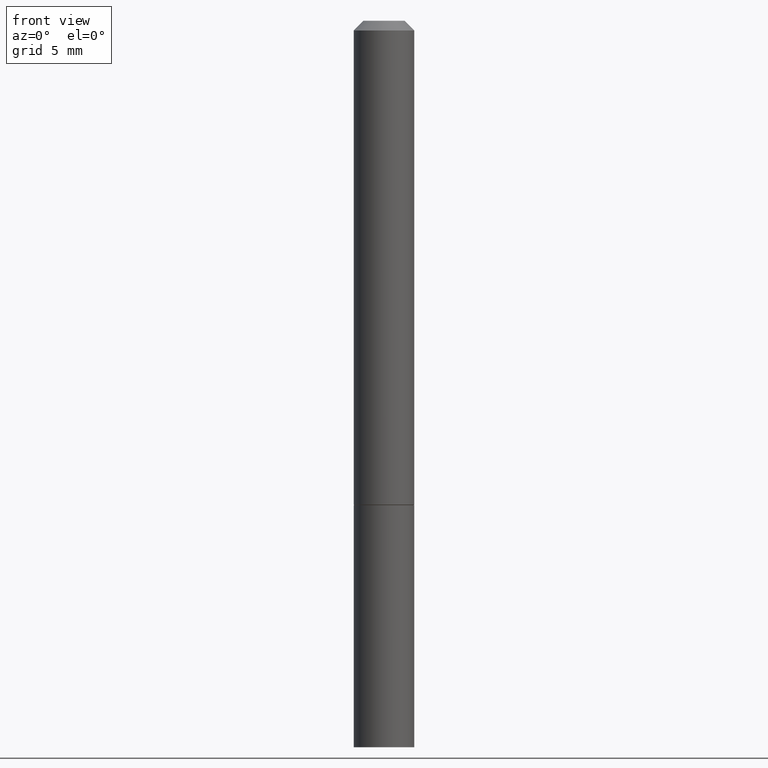
[diagram: clean part render]
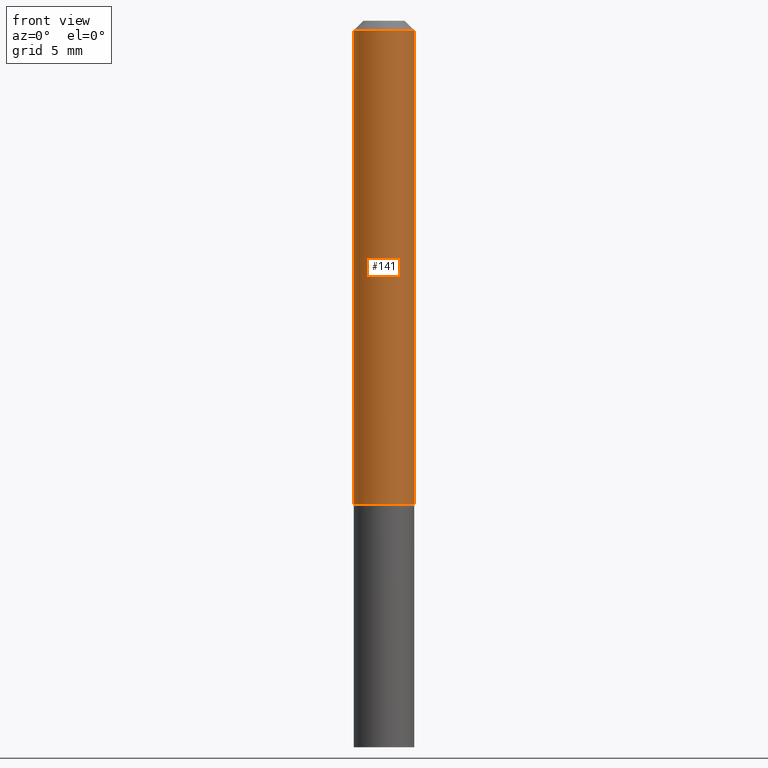
[diagram: same view with one face highlighted and labeled with its STEP entity id]
A machine part, front view. The second image highlights one B-rep face of the part: STEP entity #141.
In plain terms, the highlighted cylindrical surface (edge-blend (fillet) strip) has radius 1.5875 mm, axis along (-0, 0, 1).
Its self-contained STEP definition (entity closure, byte-faithful):
#14 = DIRECTION ( 'NONE',  ( 1.000000000000000000, -6.982962677686265133E-15, 0.000000000000000000 ) ) ;
#21 = VERTEX_POINT ( 'NONE', #155 ) ;
#25 = VERTEX_POINT ( 'NONE', #166 ) ;
#31 = DIRECTION ( 'NONE',  ( 1.000000000000000000, -6.982962677686266711E-15, 4.876176775795935793E-29 ) ) ;
#38 = ORIENTED_EDGE ( 'NONE', *, *, #319, .F. ) ;
#54 = LINE ( 'NONE', #134, #327 ) ;
#60 = FACE_OUTER_BOUND ( 'NONE', #111, .T. ) ;
#67 = DIRECTION ( 'NONE',  ( -2.445468806185136877E-29, 3.491481338843145188E-15, 1.000000000000000000 ) ) ;
#71 = ORIENTED_EDGE ( 'NONE', *, *, #184, .T. ) ;
#77 = DIRECTION ( 'NONE',  ( -2.445468806185136877E-29, 3.491481338843145188E-15, 1.000000000000000000 ) ) ;
#84 = ORIENTED_EDGE ( 'NONE', *, *, #167, .T. ) ;
#88 = DIRECTION ( 'NONE',  ( -2.445468806185136597E-29, 3.491481338843145583E-15, 1.000000000000000000 ) ) ;
#104 = AXIS2_PLACEMENT_3D ( 'NONE', #288, #340, #31 ) ;
#111 = EDGE_LOOP ( 'NONE', ( #38, #84, #71, #358 ) ) ;
#129 = EDGE_CURVE ( 'NONE', #365, #234, #326, .T. ) ;
#134 = CARTESIAN_POINT ( 'NONE',  ( -0.06249999999999993061, 4.440892098500621231E-16, -3.074334431409312610E-30 ) ) ;
#140 = VECTOR ( 'NONE', #67, 39.37007874015748143 ) ;
#141 = ADVANCED_FACE ( 'NONE', ( #60 ), #176, .T. ) ;
#155 = CARTESIAN_POINT ( 'NONE',  ( 0.06249999999999997918, -3.924425024859694639E-15, -0.9990000000000002212 ) ) ;
#166 = CARTESIAN_POINT ( 'NONE',  ( -0.06249999999999999306, -1.334820532290518940E-15, -0.9990000000000002212 ) ) ;
#167 = EDGE_CURVE ( 'NONE', #25, #21, #337, .T. ) ;
#176 = CYLINDRICAL_SURFACE ( 'NONE', #104, 0.06249999999999993061 ) ;
#184 = EDGE_CURVE ( 'NONE', #21, #234, #206, .T. ) ;
#192 = DIRECTION ( 'NONE',  ( -2.445468806185136597E-29, 3.491481338843145583E-15, 1.000000000000000000 ) ) ;
#206 = LINE ( 'NONE', #211, #140 ) ;
#208 = DIRECTION ( 'NONE',  ( 1.000000000000000000, -6.982962677686266711E-15, 0.000000000000000000 ) ) ;
#211 = CARTESIAN_POINT ( 'NONE',  ( 0.06249999999999993061, -4.364351673553911764E-16, 3.047610484872456367E-30 ) ) ;
#214 = CARTESIAN_POINT ( 'NONE',  ( 2.443023337378951835E-29, -3.487989857504302970E-15, -0.9990000000000002212 ) ) ;
#226 = AXIS2_PLACEMENT_3D ( 'NONE', #333, #88, #208 ) ;
#234 = VERTEX_POINT ( 'NONE', #311 ) ;
#273 = CARTESIAN_POINT ( 'NONE',  ( -0.06249999999999988204, 3.666055405785277796E-16, -0.02000000000000003858 ) ) ;
#281 = AXIS2_PLACEMENT_3D ( 'NONE', #214, #192, #14 ) ;
#288 = CARTESIAN_POINT ( 'NONE',  ( 0.000000000000000000, 0.000000000000000000, 0.000000000000000000 ) ) ;
#311 = CARTESIAN_POINT ( 'NONE',  ( 0.06249999999999988204, -4.986107516375829362E-16, -0.02000000000000003858 ) ) ;
#319 = EDGE_CURVE ( 'NONE', #25, #365, #54, .T. ) ;
#326 = CIRCLE ( 'NONE', #226, 0.06249999999999988204 ) ;
#327 = VECTOR ( 'NONE', #77, 39.37007874015748143 ) ;
#333 = CARTESIAN_POINT ( 'NONE',  ( 4.890937612370282792E-31, -6.982962677686303935E-17, -0.02000000000000003858 ) ) ;
#337 = CIRCLE ( 'NONE', #281, 0.06249999999999997918 ) ;
#340 = DIRECTION ( 'NONE',  ( -2.445468806185136597E-29, 3.491481338843145583E-15, 1.000000000000000000 ) ) ;
#358 = ORIENTED_EDGE ( 'NONE', *, *, #129, .F. ) ;
#365 = VERTEX_POINT ( 'NONE', #273 ) ;